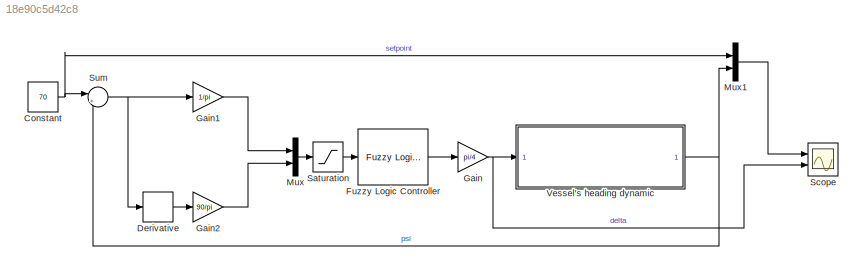
MODEL slx_18e90c5d42c8
KIND model
CONFIG AbsTol = auto
CONFIG EnableMultiTasking = off
CONFIG FixedStep = 1
CONFIG MaxStep = auto
CONFIG MinStep = auto
CONFIG RelTol = 1e-3
CONFIG SampleTimeConstraint = Unconstrained
CONFIG SolverName = ode4
CONFIG StartTime = 0.0
CONFIG StopTime = 6000
BLOCK [Constant] Constant
  Value = 70
BLOCK [Derivative] Derivative
BLOCK [Reference] Fuzzy Logic Controller  REF=fuzblock/Fuzzy Logic   (lib defined in mdl_858b3b3e7478)
Controller
  Ports = [1, 1]
  SourceBlock = fuzblock/Fuzzy Logic \nController
  SourceProductBaseCode = FL
  SourceType = Fuzzy Inference System
BLOCK [Gain] Gain
  Gain = pi/4
BLOCK [Gain] Gain1
  Gain = 1/pi
BLOCK [Gain] Gain2
  Gain = 90/pi
BLOCK [Mux] Mux
  DisplayOption = bar
  Inputs = 2
  Ports = [2, 1]
BLOCK [Mux] Mux1
  DisplayOption = bar
  Inputs = 2
  Ports = [2, 1]
BLOCK [Saturate] Saturation
  LowerLimit = -1
  UpperLimit = 1
BLOCK [Scope] Scope
  Floating = off
  NumInputPorts = 2
  Ports = [2]
  ScopeSpecificationString = Simulink.scopes.TimeScopeBlockCfg('CurrentConfiguration', extmgr.ConfigurationSet(extmgr.Configuration('Core','General UI',true,'FigureColor',[1 1 1]),extmgr.Configuration('Core','Source UI',true),extmgr.Configuration('Sources','WiredSimulink',true),extmgr.Configuration('Visuals','Time Domain',true,'SerializedDisplays',{struct('MinYLimReal','-181.54113','MaxYLimReal','185.86852','YLabelReal','','M...<+2508ch>
BLOCK [Sum] Sum
  Inputs = |+-
  Ports = [2, 1]
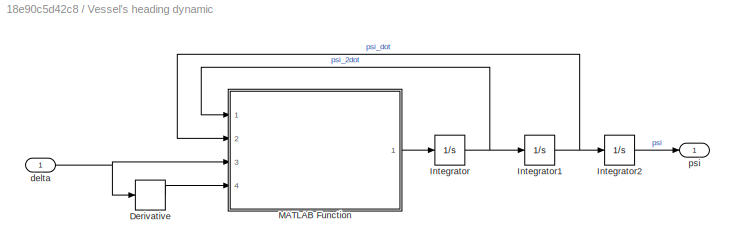
BLOCK [SubSystem] Vessel's heading dynamic
  Ports = [1, 1]
  RequestExecContextInheritance = off
BLOCK [Derivative] Vessel's heading dynamic/Derivative
BLOCK [Integrator] Vessel's heading dynamic/Integrator
  Ports = [1, 1]
BLOCK [Integrator] Vessel's heading dynamic/Integrator1
  Ports = [1, 1]
BLOCK [Integrator] Vessel's heading dynamic/Integrator2
  Ports = [1, 1]
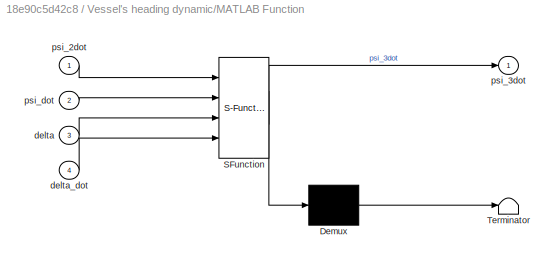
BLOCK [SubSystem] Vessel's heading dynamic/MATLAB Function
  ErrorFcn = Stateflow.Translate.translate
  PermitHierarchicalResolution = ExplicitOnly
  Ports = [4, 1]
  RequestExecContextInheritance = off
  SFBlockType = MATLAB Function
  TreatAsAtomicUnit = on
BLOCK [Demux] Vessel's heading dynamic/MATLAB Function/ Demux 
  Outputs = 1
  Ports = [1, 1]
BLOCK [S-Function] Vessel's heading dynamic/MATLAB Function/ SFunction 
  EnableBusSupport = on
  FunctionName = sf_sfun
  PortCounts = [4 2]
  Ports = [4, 2]
  SFcnIsStateOwnerBlock = off
  SFunctionDeploymentMode = off
  Tag = Stateflow S-Function 2
BLOCK [Terminator] Vessel's heading dynamic/MATLAB Function/ Terminator 
BLOCK [Inport] Vessel's heading dynamic/MATLAB Function/delta
  Port = 3
BLOCK [Inport] Vessel's heading dynamic/MATLAB Function/delta_dot
  Port = 4
BLOCK [Inport] Vessel's heading dynamic/MATLAB Function/psi_2dot
BLOCK [Outport] Vessel's heading dynamic/MATLAB Function/psi_3dot
BLOCK [Inport] Vessel's heading dynamic/MATLAB Function/psi_dot
  Port = 2
BLOCK [Inport] Vessel's heading dynamic/delta
BLOCK [Outport] Vessel's heading dynamic/psi
NET Constant:1 -> Mux1:1, Sum:1
LINE Derivative:1 -> Gain2:1
LINE Fuzzy Logic Controller:1 -> Gain:1
LINE Gain1:1 -> Mux:1
LINE Gain2:1 -> Mux:2
NET Gain:1 -> Scope:2, Vessel's heading dynamic:1
LINE Mux1:1 -> Scope:1
LINE Mux:1 -> Saturation:1
LINE Saturation:1 -> Fuzzy Logic Controller:1
NET Sum:1 -> Derivative:1, Gain1:1
LINE Vessel's heading dynamic/Derivative:1 -> Vessel's heading dynamic/MATLAB Function:4
NET Vessel's heading dynamic/Integrator1:1 -> Vessel's heading dynamic/Integrator2:1, Vessel's heading dynamic/MATLAB Function:2
LINE Vessel's heading dynamic/Integrator2:1 -> Vessel's heading dynamic/psi:1
NET Vessel's heading dynamic/Integrator:1 -> Vessel's heading dynamic/Integrator1:1, Vessel's heading dynamic/MATLAB Function:1
LINE Vessel's heading dynamic/MATLAB Function:1 -> Vessel's heading dynamic/Integrator:1
NET Vessel's heading dynamic/delta:1 -> Vessel's heading dynamic/Derivative:1, Vessel's heading dynamic/MATLAB Function:3
NET Vessel's heading dynamic:1 -> Mux1:2, Sum:2
note: NET lines group one-source signal fan-out (src -> all destinations, sorted); 1:1 wires keep LINE
CHART Vessel's heading dynamic/MATLAB Function states=1 transitions=1
  STATE_LABEL 'eML_blk_kernel()'
  STATE_LABEL 'SCRIPT:\nfunction psi_3dot = fcn(psi_2dot, psi_dot,delta,delta_dot)\nl = 161 ; % vessel length\nv = 5;  % vessel velocity\nk0 = -3.86;\ntau_10 = 5.66;\ntau_20 = 0.38;\ntau_30 = 0.89;\nk = k0*v/l;\ntau_1 = tau_10 *l/v;\ntau_2 = tau_20 *l/v;\ntau_3 = tau_30 *l/v;\n\npsi_3dot = (k/(tau_1*tau_2))*(tau_3*delta_dot + delta)-(1/tau_1 +1/tau_2)*psi_2dot - (1/(tau_1*tau_2))*(psi_dot^3 +psi_dot);'
CHART  states=0 transitions=0
